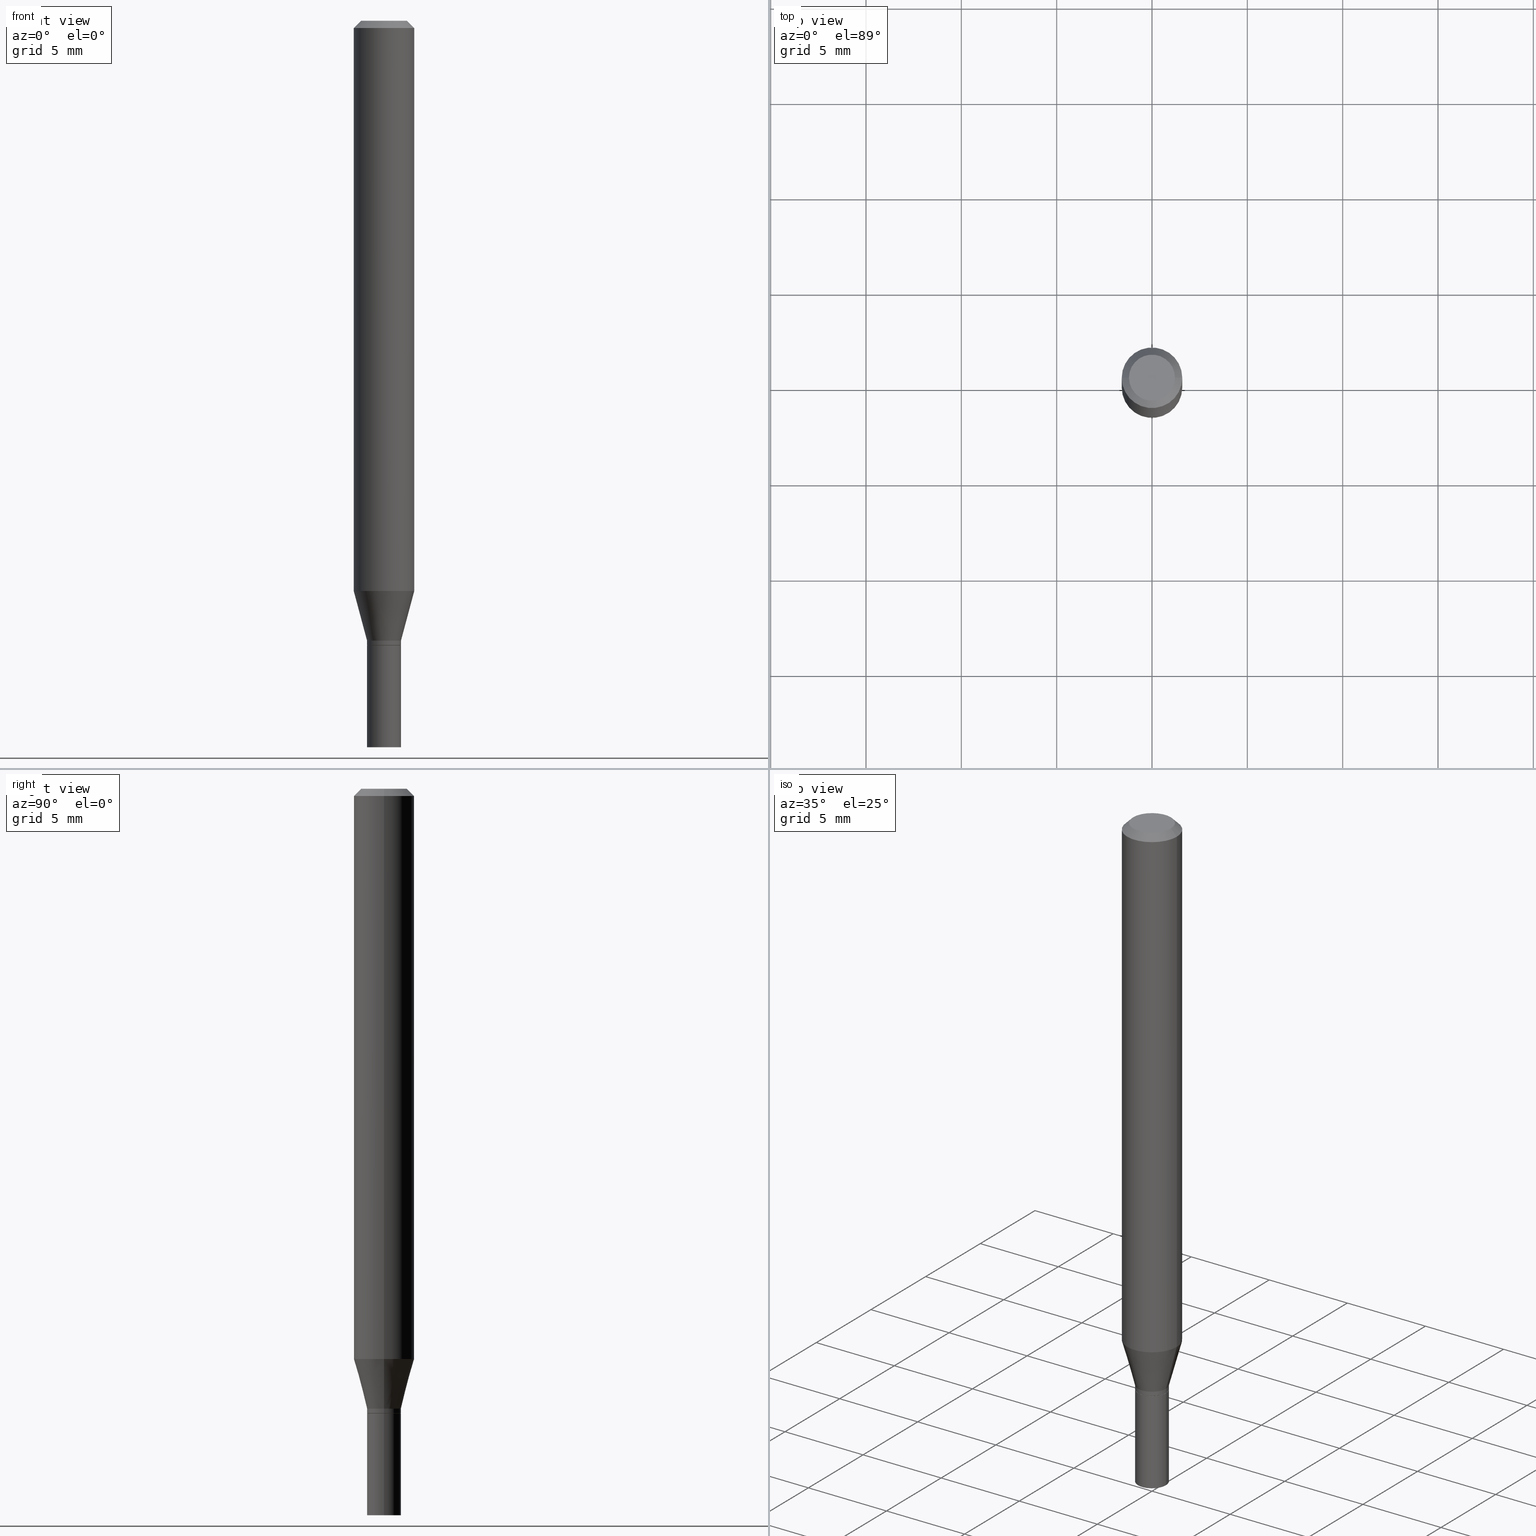
[diagram: canonical four-view strip — front | top / right | iso, engineering-drawing reading convention]
A machine part, canonical four-view strip (front | top / right | iso — engineering-drawing reading convention). The complete STEP part file that produces these views, byte-faithful:
ISO-10303-21;
HEADER;
FILE_DESCRIPTION (( 'STEP AP203' ),
    '1' );
FILE_NAME ('02458.STEP',
    '2024-03-18T20:43:03',
    ( '' ),
    ( '' ),
    'SwSTEP 2.0',
    'SolidWorks 2023',
    '' );
FILE_SCHEMA (( 'CONFIG_CONTROL_DESIGN' ));
ENDSEC;

DATA;
#1 = DIRECTION ( 'NONE',  ( 1.000000000000000000, -6.982962677686276966E-15, 0.000000000000000000 ) ) ;
#2 = DIRECTION ( 'NONE',  ( -2.445468806185136597E-29, 3.491481338843145583E-15, 1.000000000000000000 ) ) ;
#3 = EDGE_CURVE ( 'NONE', #17, #269, #265, .T. ) ;
#4 = CARTESIAN_POINT ( 'NONE',  ( -0.03499999999999992700, -4.220406156203192133E-15, -1.280000000000000027 ) ) ;
#5 = CARTESIAN_POINT ( 'NONE',  ( 0.03500000000000000333, -4.748414620826678245E-15, -1.290000000000000258 ) ) ;
#6 = APPROVAL ( #275, 'UNSPECIFIED' ) ;
#7 = ADVANCED_FACE ( 'NONE', ( #310 ), #237, .T. ) ;
#8 = PLANE ( 'NONE',  #216 ) ;
#9 = DIRECTION ( 'NONE',  ( -2.445468806185136597E-29, 3.491481338843145583E-15, 1.000000000000000000 ) ) ;
#10 = AXIS2_PLACEMENT_3D ( 'NONE', #439, #114, #395 ) ;
#11 = AXIS2_PLACEMENT_3D ( 'NONE', #428, #254, #82 ) ;
#12 = ORIENTED_EDGE ( 'NONE', *, *, #188, .T. ) ;
#13 = VERTEX_POINT ( 'NONE', #201 ) ;
#14 = FACE_OUTER_BOUND ( 'NONE', #160, .T. ) ;
#15 = EDGE_LOOP ( 'NONE', ( #268, #364, #332, #270 ) ) ;
#16 = CARTESIAN_POINT ( 'NONE',  ( 3.154654759978826367E-29, -4.504010927107658279E-15, -1.290000000000000258 ) ) ;
#17 = VERTEX_POINT ( 'NONE', #106 ) ;
#18 = AXIS2_PLACEMENT_3D ( 'NONE', #389, #325, #353 ) ;
#19 = APPLICATION_PROTOCOL_DEFINITION ( 'international standard', 'config_control_design', 1994, #239 ) ;
#20 = ORIENTED_EDGE ( 'NONE', *, *, #405, .F. ) ;
#21 = CALENDAR_DATE ( 2024, 18, 3 ) ;
#22 = DIRECTION ( 'NONE',  ( 1.000000000000000000, -6.982962677686264344E-15, 0.000000000000000000 ) ) ;
#23 = DIRECTION ( 'NONE',  ( -0.7071067811865656694, 7.493145998870420424E-15, 0.7071067811865294761 ) ) ;
#24 = AXIS2_PLACEMENT_3D ( 'NONE', #110, #355, #37 ) ;
#25 = PERSON_AND_ORGANIZATION_ROLE ( 'creator' ) ;
#26 = CARTESIAN_POINT ( 'NONE',  ( 0.06250000000000000000, -4.547195672942983858E-15, -1.177368602791855512 ) ) ;
#27 = CARTESIAN_POINT ( 'NONE',  ( -0.03500000000000000333, -4.621926510170152942E-15, -1.290000000000000258 ) ) ;
#28 = EDGE_CURVE ( 'NONE', #276, #29, #384, .T. ) ;
#29 = VERTEX_POINT ( 'NONE', #281 ) ;
#30 = CARTESIAN_POINT ( 'NONE',  ( 0.03499999999999992700, -4.713499807438245807E-15, -1.280000000000000027 ) ) ;
#31 = CARTESIAN_POINT ( 'NONE',  ( -0.03450000000000000289, -4.258873683270423891E-15, -1.290000000000000258 ) ) ;
#32 = DIRECTION ( 'NONE',  ( -2.445468806185136597E-29, 3.491481338843145583E-15, 1.000000000000000000 ) ) ;
#33 = CC_DESIGN_PERSON_AND_ORGANIZATION_ASSIGNMENT ( #137, #420, ( #251 ) ) ;
#34 = DIRECTION ( 'NONE',  ( -1.000000000000000000, 6.982962677686266711E-15, 0.000000000000000000 ) ) ;
#35 = FACE_OUTER_BOUND ( 'NONE', #193, .T. ) ;
#36 = FACE_OUTER_BOUND ( 'NONE', #337, .T. ) ;
#37 = DIRECTION ( 'NONE',  ( 1.000000000000000000, -6.982962677686266711E-15, 0.000000000000000000 ) ) ;
#38 = CIRCLE ( 'NONE', #301, 0.06250000000000000000 ) ;
#39 = DIRECTION ( 'NONE',  ( -2.445468806185136597E-29, 3.491481338843145583E-15, 1.000000000000000000 ) ) ;
#40 = CIRCLE ( 'NONE', #175, 0.03499999999999992700 ) ;
#41 = PLANE ( 'NONE',  #10 ) ;
#42 = LINE ( 'NONE', #330, #372 ) ;
#43 = EDGE_CURVE ( 'NONE', #29, #296, #38, .T. ) ;
#44 = CLOSED_SHELL ( 'NONE', ( #245, #186, #271, #334, #172, #415, #218, #150, #194, #206, #7, #177 ) ) ;
#45 = AXIS2_PLACEMENT_3D ( 'NONE', #219, #39, #361 ) ;
#46 = ORIENTED_EDGE ( 'NONE', *, *, #221, .T. ) ;
#47 = EDGE_LOOP ( 'NONE', ( #262, #454, #229, #55 ) ) ;
#48 = CALENDAR_DATE ( 2024, 18, 3 ) ;
#49 = APPROVAL_ROLE ( '' ) ;
#50 = ORIENTED_EDGE ( 'NONE', *, *, #435, .T. ) ;
#51 = ORIENTED_EDGE ( 'NONE', *, *, #338, .T. ) ;
#52 = MANIFOLD_SOLID_BREP ( 'Body-Move/Copy2[2]', #44 ) ;
#53 = COORDINATED_UNIVERSAL_TIME_OFFSET ( 5, 0, .BEHIND. ) ;
#54 = DIRECTION ( 'NONE',  ( 1.000000000000000000, 0.000000000000000000, 0.000000000000000000 ) ) ;
#55 = ORIENTED_EDGE ( 'NONE', *, *, #460, .F. ) ;
#56 = EDGE_CURVE ( 'NONE', #13, #345, #102, .T. ) ;
#57 = MANIFOLD_SOLID_BREP ( 'Body-Move/Copy2[1]', #215 ) ;
#58 = DIRECTION ( 'NONE',  ( -0.7071067811865416886, 2.468850131082196713E-15, -0.7071067811865531239 ) ) ;
#59 = CARTESIAN_POINT ( 'NONE',  ( 3.154654759978826367E-29, -4.504010927107658279E-15, -1.290000000000000258 ) ) ;
#60 = AXIS2_PLACEMENT_3D ( 'NONE', #322, #462, #62 ) ;
#61 = LOCAL_TIME ( 16, 43, 3.000000000000000000, #226 ) ;
#62 = DIRECTION ( 'NONE',  ( 1.000000000000000000, -6.982962677686270655E-15, 0.000000000000000000 ) ) ;
#63 = FACE_OUTER_BOUND ( 'NONE', #244, .T. ) ;
#64 = DIRECTION ( 'NONE',  ( -1.000000000000000000, 6.982962677686266711E-15, 0.000000000000000000 ) ) ;
#65 = DIRECTION ( 'NONE',  ( -2.445468806185136597E-29, 3.491481338843145583E-15, 1.000000000000000000 ) ) ;
#66 = DIRECTION ( 'NONE',  ( 0.7071067811865656694, -2.468850131082446387E-15, 0.7071067811865294761 ) ) ;
#67 = DIRECTION ( 'NONE',  ( 1.000000000000000000, -6.982962677686276966E-15, 0.000000000000000000 ) ) ;
#68 = DIRECTION ( 'NONE',  ( -2.445468806185136597E-29, 3.491481338843145583E-15, 1.000000000000000000 ) ) ;
#69 = CC_DESIGN_DATE_AND_TIME_ASSIGNMENT ( #320, #461, ( #251 ) ) ;
#70 = PRODUCT ( '02458', '02458', '', ( #95 ) ) ;
#71 = CARTESIAN_POINT ( 'NONE',  ( 3.130200071916974821E-29, -4.469096113719226630E-15, -1.280000000000000027 ) ) ;
#72 = AXIS2_PLACEMENT_3D ( 'NONE', #197, #318, #235 ) ;
#73 = DIRECTION ( 'NONE',  ( -2.445468806185136597E-29, 3.491481338843145583E-15, 1.000000000000000000 ) ) ;
#74 = CC_DESIGN_APPROVAL ( #6, ( #94 ) ) ;
#75 = DIRECTION ( 'NONE',  ( 1.000000000000000000, -6.982962677686266711E-15, 4.876176775795935793E-29 ) ) ;
#76 = LINE ( 'NONE', #394, #80 ) ;
#77 = EDGE_CURVE ( 'NONE', #269, #300, #381, .T. ) ;
#78 = VERTEX_POINT ( 'NONE', #347 ) ;
#79 = FACE_OUTER_BOUND ( 'NONE', #162, .T. ) ;
#80 = VECTOR ( 'NONE', #294, 39.37007874015748143 ) ;
#81 = DIRECTION ( 'NONE',  ( 1.000000000000000000, -6.982962677686266711E-15, 4.876176775795935793E-29 ) ) ;
#82 = DIRECTION ( 'NONE',  ( 1.000000000000000000, -6.982962677686261977E-15, 0.000000000000000000 ) ) ;
#83 = CARTESIAN_POINT ( 'NONE',  ( 0.03500000000000000333, -2.444036937190193250E-16, 1.706661871528577808E-30 ) ) ;
#84 = ORIENTED_EDGE ( 'NONE', *, *, #380, .T. ) ;
#85 = AXIS2_PLACEMENT_3D ( 'NONE', #412, #99, #414 ) ;
#86 = ORIENTED_EDGE ( 'NONE', *, *, #290, .F. ) ;
#87 = FACE_OUTER_BOUND ( 'NONE', #118, .T. ) ;
#88 = APPROVAL_ROLE ( '' ) ;
#89 = EDGE_LOOP ( 'NONE', ( #404, #314, #441, #374 ) ) ;
#90 = EDGE_CURVE ( 'NONE', #17, #274, #375, .T. ) ;
#91 = PERSON_AND_ORGANIZATION ( #418, #449 ) ;
#92 = COORDINATED_UNIVERSAL_TIME_OFFSET ( 5, 0, .BEHIND. ) ;
#93 = ORIENTED_EDGE ( 'NONE', *, *, #43, .T. ) ;
#94 = PRODUCT_DEFINITION ( 'UNKNOWN', '', #433, #155 ) ;
#95 = MECHANICAL_CONTEXT ( 'NONE', #351, 'mechanical' ) ;
#96 = EDGE_LOOP ( 'NONE', ( #225, #163, #231, #297 ) ) ;
#97 = AXIS2_PLACEMENT_3D ( 'NONE', #213, #183, #1 ) ;
#98 = ORIENTED_EDGE ( 'NONE', *, *, #453, .T. ) ;
#99 = DIRECTION ( 'NONE',  ( -2.445468806185136597E-29, 3.491481338843145583E-15, 1.000000000000000000 ) ) ;
#100 = DIRECTION ( 'NONE',  ( -2.438088387897960049E-29, 3.491481338843145188E-15, 1.000000000000000000 ) ) ;
#101 = VERTEX_POINT ( 'NONE', #26 ) ;
#102 = CIRCLE ( 'NONE', #357, 0.03499999999999992700 ) ;
#103 = CARTESIAN_POINT ( 'NONE',  ( 3.154654759978826367E-29, -4.504010927107658279E-15, -1.290000000000000258 ) ) ;
#104 = DIRECTION ( 'NONE',  ( 1.000000000000000000, -6.982962677686266711E-15, 4.876176775795935793E-29 ) ) ;
#105 = CARTESIAN_POINT ( 'NONE',  ( 3.130200071916974821E-29, -4.469096113719226630E-15, -1.280000000000000027 ) ) ;
#106 = CARTESIAN_POINT ( 'NONE',  ( -0.03450000000000000289, -4.256224456096313479E-15, -1.290000000000000258 ) ) ;
#107 = DIRECTION ( 'NONE',  ( 0.2588190451025205729, 1.565188264969627490E-15, 0.9659258262890682012 ) ) ;
#108 = DIRECTION ( 'NONE',  ( 1.000000000000000000, -6.982962677686264344E-15, 0.000000000000000000 ) ) ;
#109 = CIRCLE ( 'NONE', #266, 0.03499999999999992700 ) ;
#110 = CARTESIAN_POINT ( 'NONE',  ( 3.668203209277705088E-31, -5.237222008264718399E-17, -0.01499999999999999944 ) ) ;
#111 = FACE_OUTER_BOUND ( 'NONE', #171, .T. ) ;
#112 = CARTESIAN_POINT ( 'NONE',  ( 3.130200071916974821E-29, -4.469096113719226630E-15, -1.280000000000000027 ) ) ;
#113 = CONICAL_SURFACE ( 'NONE', #200, 0.06250000000000000000, 0.7853981633974401744 ) ;
#114 = DIRECTION ( 'NONE',  ( -2.438088387897960049E-29, 3.491481338843145188E-15, 1.000000000000000000 ) ) ;
#115 = AXIS2_PLACEMENT_3D ( 'NONE', #304, #191, #54 ) ;
#116 = EDGE_CURVE ( 'NONE', #101, #276, #190, .T. ) ;
#117 = ORIENTED_EDGE ( 'NONE', *, *, #157, .T. ) ;
#118 = EDGE_LOOP ( 'NONE', ( #436, #182 ) ) ;
#119 = EDGE_CURVE ( 'NONE', #227, #29, #126, .T. ) ;
#120 = VECTOR ( 'NONE', #323, 39.37007874015748854 ) ;
#121 = PRODUCT_RELATED_PRODUCT_CATEGORY ( 'detail', '', ( #70 ) ) ;
#122 = ORIENTED_EDGE ( 'NONE', *, *, #366, .F. ) ;
#123 = ORIENTED_EDGE ( 'NONE', *, *, #56, .T. ) ;
#124 = EDGE_CURVE ( 'NONE', #274, #300, #401, .T. ) ;
#125 = VERTEX_POINT ( 'NONE', #376 ) ;
#126 = LINE ( 'NONE', #174, #442 ) ;
#127 = AXIS2_PLACEMENT_3D ( 'NONE', #344, #385, #463 ) ;
#128 = CIRCLE ( 'NONE', #11, 0.03450000000000000289 ) ;
#129 = CYLINDRICAL_SURFACE ( 'NONE', #400, 0.06250000000000000000 ) ;
#130 = COORDINATED_UNIVERSAL_TIME_OFFSET ( 5, 0, .BEHIND. ) ;
#131 = CARTESIAN_POINT ( 'NONE',  ( -0.06250000000000000000, 4.440892098500626162E-16, -3.074334431409316114E-30 ) ) ;
#132 = FACE_OUTER_BOUND ( 'NONE', #399, .T. ) ;
#133 = SECURITY_CLASSIFICATION_LEVEL ( 'unclassified' ) ;
#134 = ORIENTED_EDGE ( 'NONE', *, *, #261, .T. ) ;
#135 = CIRCLE ( 'NONE', #432, 0.03500000000000000333 ) ;
#136 = LOCAL_TIME ( 16, 43, 3.000000000000000000, #383 ) ;
#137 = PERSON_AND_ORGANIZATION ( #418, #449 ) ;
#138 = EDGE_LOOP ( 'NONE', ( #165, #370 ) ) ;
#139 = PRODUCT_DEFINITION_SHAPE ( 'NONE', 'NONE',  #94 ) ;
#140 = EDGE_CURVE ( 'NONE', #78, #125, #408, .T. ) ;
#141 = CARTESIAN_POINT ( 'NONE',  ( 0.03499999999999992700, -4.713499807438245807E-15, -1.280000000000000027 ) ) ;
#142 = CARTESIAN_POINT ( 'NONE',  ( 0.03499999999999992700, -4.746668880157255952E-15, -1.289500000000000313 ) ) ;
#143 = AXIS2_PLACEMENT_3D ( 'NONE', #220, #328, #81 ) ;
#144 = CIRCLE ( 'NONE', #317, 0.04749999999999999362 ) ;
#145 = CARTESIAN_POINT ( 'NONE',  ( 3.130200071916974821E-29, -4.469096113719226630E-15, -1.280000000000000027 ) ) ;
#146 = CARTESIAN_POINT ( 'NONE',  ( 3.316907271900976096E-16, 0.04749999999999999362, -4.235459955654642541E-17 ) ) ;
#147 =( CONVERSION_BASED_UNIT ( 'INCH', #390 ) LENGTH_UNIT ( ) NAMED_UNIT ( #249 ) );
#148 = DIRECTION ( 'NONE',  ( -2.445468806185136597E-29, 3.491481338843145583E-15, 1.000000000000000000 ) ) ;
#149 = CYLINDRICAL_SURFACE ( 'NONE', #143, 0.03499999999999992700 ) ;
#150 = ADVANCED_FACE ( 'NONE', ( #132 ), #393, .T. ) ;
#151 = CC_DESIGN_PERSON_AND_ORGANIZATION_ASSIGNMENT ( #205, #457, ( #433 ) ) ;
#152 = DIRECTION ( 'NONE',  ( -2.445468806185136877E-29, 3.491481338843145188E-15, 1.000000000000000000 ) ) ;
#153 = AXIS2_PLACEMENT_3D ( 'NONE', #112, #392, #327 ) ;
#154 = ORIENTED_EDGE ( 'NONE', *, *, #28, .F. ) ;
#155 = DESIGN_CONTEXT ( 'detailed design', #239, 'design' ) ;
#156 = ORIENTED_EDGE ( 'NONE', *, *, #397, .F. ) ;
#157 = EDGE_CURVE ( 'NONE', #300, #274, #109, .T. ) ;
#158 = VERTEX_POINT ( 'NONE', #5 ) ;
#159 = VECTOR ( 'NONE', #66, 39.37007874015748143 ) ;
#160 = EDGE_LOOP ( 'NONE', ( #117, #233, #122, #20 ) ) ;
#161 = PLANE ( 'NONE',  #166 ) ;
#162 = EDGE_LOOP ( 'NONE', ( #368, #305 ) ) ;
#163 = ORIENTED_EDGE ( 'NONE', *, *, #140, .T. ) ;
#164 = APPROVAL_DATE_TIME ( #438, #398 ) ;
#165 = ORIENTED_EDGE ( 'NONE', *, *, #435, .F. ) ;
#166 = AXIS2_PLACEMENT_3D ( 'NONE', #16, #100, #236 ) ;
#167 = CC_DESIGN_APPROVAL ( #398, ( #251 ) ) ;
#168 = DATE_AND_TIME ( #21, #465 ) ;
#169 = DIRECTION ( 'NONE',  ( 1.000000000000000000, -6.982962677686266711E-15, 0.000000000000000000 ) ) ;
#170 = PERSON_AND_ORGANIZATION_ROLE ( 'creator' ) ;
#171 = EDGE_LOOP ( 'NONE', ( #156, #123, #46, #185 ) ) ;
#172 = ADVANCED_FACE ( 'NONE', ( #431 ), #371, .T. ) ;
#173 = FACE_OUTER_BOUND ( 'NONE', #47, .T. ) ;
#174 = CARTESIAN_POINT ( 'NONE',  ( -0.06250000000000000000, 3.840629472727444916E-16, -0.01499999999999999944 ) ) ;
#175 = AXIS2_PLACEMENT_3D ( 'NONE', #145, #32, #208 ) ;
#176 = APPROVAL_PERSON_ORGANIZATION ( #373, #6, #49 ) ;
#177 = ADVANCED_FACE ( 'NONE', ( #179 ), #427, .T. ) ;
#178 = CYLINDRICAL_SURFACE ( 'NONE', #127, 0.03500000000000000333 ) ;
#179 = FACE_OUTER_BOUND ( 'NONE', #307, .T. ) ;
#180 = CIRCLE ( 'NONE', #358, 0.03500000000000000333 ) ;
#181 = CARTESIAN_POINT ( 'NONE',  ( 2.444036937190508794E-16, 0.03499999999999549999, -1.290000000000000258 ) ) ;
#182 = ORIENTED_EDGE ( 'NONE', *, *, #3, .F. ) ;
#183 = DIRECTION ( 'NONE',  ( -2.445468806185136597E-29, 3.491481338843145583E-15, 1.000000000000000000 ) ) ;
#184 = VECTOR ( 'NONE', #107, 39.37007874015748854 ) ;
#185 = ORIENTED_EDGE ( 'NONE', *, *, #291, .F. ) ;
#186 = ADVANCED_FACE ( 'NONE', ( #253 ), #341, .T. ) ;
#187 = ORIENTED_EDGE ( 'NONE', *, *, #338, .F. ) ;
#188 = EDGE_CURVE ( 'NONE', #296, #29, #455, .T. ) ;
#189 = ORIENTED_EDGE ( 'NONE', *, *, #460, .T. ) ;
#190 = CIRCLE ( 'NONE', #85, 0.06250000000000000000 ) ;
#191 = DIRECTION ( 'NONE',  ( 0.000000000000000000, 0.000000000000000000, 1.000000000000000000 ) ) ;
#192 =( GEOMETRIC_REPRESENTATION_CONTEXT ( 3 ) GLOBAL_UNCERTAINTY_ASSIGNED_CONTEXT ( ( #369 ) ) GLOBAL_UNIT_ASSIGNED_CONTEXT ( ( #147, #329, #309 ) ) REPRESENTATION_CONTEXT ( 'NONE', 'WORKASPACE' ) );
#193 = EDGE_LOOP ( 'NONE', ( #406, #134 ) ) ;
#194 = ADVANCED_FACE ( 'NONE', ( #35 ), #466, .F. ) ;
#195 = DATE_AND_TIME ( #306, #282 ) ;
#196 = CARTESIAN_POINT ( 'NONE',  ( 3.154654759978826367E-29, -4.504010927107658279E-15, -1.290000000000000258 ) ) ;
#197 = CARTESIAN_POINT ( 'NONE',  ( 3.153432025575734126E-29, -4.502265186438236775E-15, -1.289500000000000313 ) ) ;
#198 = CC_DESIGN_PERSON_AND_ORGANIZATION_ASSIGNMENT ( #342, #25, ( #94 ) ) ;
#199 = APPROVAL_DATE_TIME ( #195, #6 ) ;
#200 = AXIS2_PLACEMENT_3D ( 'NONE', #319, #283, #34 ) ;
#201 = CARTESIAN_POINT ( 'NONE',  ( -0.03499999999999992700, -3.943538725970360852E-15, -1.280000000000000027 ) ) ;
#202 = CC_DESIGN_APPROVAL ( #411, ( #433 ) ) ;
#203 = CARTESIAN_POINT ( 'NONE',  ( -0.06250000000000000000, -3.666671295737529572E-15, -1.177368602791855512 ) ) ;
#204 = DIRECTION ( 'NONE',  ( -2.445468806185136877E-29, 3.491481338843145188E-15, 1.000000000000000000 ) ) ;
#205 = PERSON_AND_ORGANIZATION ( #418, #449 ) ;
#206 = ADVANCED_FACE ( 'NONE', ( #87 ), #161, .F. ) ;
#207 = ORIENTED_EDGE ( 'NONE', *, *, #291, .T. ) ;
#208 = DIRECTION ( 'NONE',  ( 1.000000000000000000, -6.982962677686264344E-15, 0.000000000000000000 ) ) ;
#209 = CALENDAR_DATE ( 2024, 18, 3 ) ;
#210 = LINE ( 'NONE', #30, #184 ) ;
#211 = VECTOR ( 'NONE', #263, 39.37007874015748143 ) ;
#212 = APPROVAL_PERSON_ORGANIZATION ( #91, #398, #298 ) ;
#213 = CARTESIAN_POINT ( 'NONE',  ( 3.154654759978826367E-29, -4.504010927107658279E-15, -1.290000000000000258 ) ) ;
#214 = DIRECTION ( 'NONE',  ( -1.000000000000000000, 6.982962677686265922E-15, -4.876176775795935793E-29 ) ) ;
#215 = CLOSED_SHELL ( 'NONE', ( #311, #255, #402, #416 ) ) ;
#216 = AXIS2_PLACEMENT_3D ( 'NONE', #181, #356, #257 ) ;
#217 = DIRECTION ( 'NONE',  ( 1.000000000000000000, -6.982962677686276966E-15, 0.000000000000000000 ) ) ;
#218 = ADVANCED_FACE ( 'NONE', ( #63 ), #129, .T. ) ;
#219 = CARTESIAN_POINT ( 'NONE',  ( 0.000000000000000000, 0.000000000000000000, 0.000000000000000000 ) ) ;
#220 = CARTESIAN_POINT ( 'NONE',  ( 0.000000000000000000, 0.000000000000000000, 0.000000000000000000 ) ) ;
#221 = EDGE_CURVE ( 'NONE', #345, #101, #210, .T. ) ;
#222 = CARTESIAN_POINT ( 'NONE',  ( -6.039856226162565090E-45, 8.623313963198306787E-31, 2.469815280770059421E-16 ) ) ;
#223 = ORIENTED_EDGE ( 'NONE', *, *, #119, .F. ) ;
#224 = AXIS2_PLACEMENT_3D ( 'NONE', #277, #379, #64 ) ;
#225 = ORIENTED_EDGE ( 'NONE', *, *, #380, .F. ) ;
#226 = COORDINATED_UNIVERSAL_TIME_OFFSET ( 5, 0, .BEHIND. ) ;
#227 = VERTEX_POINT ( 'NONE', #247 ) ;
#228 = SHAPE_DEFINITION_REPRESENTATION ( #139, #234 ) ;
#229 = ORIENTED_EDGE ( 'NONE', *, *, #188, .F. ) ;
#230 = EDGE_CURVE ( 'NONE', #125, #158, #430, .T. ) ;
#231 = ORIENTED_EDGE ( 'NONE', *, *, #230, .T. ) ;
#232 = PERSON_AND_ORGANIZATION ( #418, #449 ) ;
#233 = ORIENTED_EDGE ( 'NONE', *, *, #350, .T. ) ;
#234 = ADVANCED_BREP_SHAPE_REPRESENTATION ( '02458', ( #57, #52, #115 ), #192 ) ;
#235 = DIRECTION ( 'NONE',  ( 1.000000000000000000, -6.982962677686264344E-15, 0.000000000000000000 ) ) ;
#236 = DIRECTION ( 'NONE',  ( 1.000000000000000000, -6.982962677686265922E-15, 4.876176775795935793E-29 ) ) ;
#237 = CONICAL_SURFACE ( 'NONE', #316, 0.03450000000000000289, 0.7853981633974739252 ) ;
#238 = AXIS2_PLACEMENT_3D ( 'NONE', #248, #387, #75 ) ;
#239 = APPLICATION_CONTEXT ( 'configuration controlled 3d designs of mechanical parts and assemblies' ) ;
#240 = CARTESIAN_POINT ( 'NONE',  ( 3.668203209277705088E-31, -5.237222008264718399E-17, -0.01499999999999999944 ) ) ;
#241 = CARTESIAN_POINT ( 'NONE',  ( 0.000000000000000000, 0.000000000000000000, 0.000000000000000000 ) ) ;
#242 = ORIENTED_EDGE ( 'NONE', *, *, #350, .F. ) ;
#243 = CYLINDRICAL_SURFACE ( 'NONE', #377, 0.06250000000000000000 ) ;
#244 = EDGE_LOOP ( 'NONE', ( #154, #207, #189, #264 ) ) ;
#245 = ADVANCED_FACE ( 'NONE', ( #14 ), #149, .T. ) ;
#246 = LINE ( 'NONE', #4, #250 ) ;
#247 = CARTESIAN_POINT ( 'NONE',  ( -0.04749999999999999362, 3.578768372314215436E-16, 2.469815280770035755E-16 ) ) ;
#248 = CARTESIAN_POINT ( 'NONE',  ( 0.000000000000000000, 0.000000000000000000, 0.000000000000000000 ) ) ;
#249 = DIMENSIONAL_EXPONENTS ( 1.000000000000000000, 0.000000000000000000, 0.000000000000000000, 0.000000000000000000, 0.000000000000000000, 0.000000000000000000, 0.000000000000000000 ) ;
#250 = VECTOR ( 'NONE', #260, 39.37007874015748854 ) ;
#251 = SECURITY_CLASSIFICATION ( '', '', #133 ) ;
#252 = CARTESIAN_POINT ( 'NONE',  ( -6.039856226162565090E-45, 8.623313963198306787E-31, 2.469815280770059421E-16 ) ) ;
#253 = FACE_OUTER_BOUND ( 'NONE', #396, .T. ) ;
#254 = DIRECTION ( 'NONE',  ( -2.445468806185136597E-29, 3.491481338843145583E-15, 1.000000000000000000 ) ) ;
#255 = ADVANCED_FACE ( 'NONE', ( #360 ), #41, .F. ) ;
#256 = DIRECTION ( 'NONE',  ( 1.000000000000000000, -6.982962677686264344E-15, 0.000000000000000000 ) ) ;
#257 = DIRECTION ( 'NONE',  ( -1.000000000000000000, 6.982962677686265922E-15, -4.876176775795935793E-29 ) ) ;
#258 = CIRCLE ( 'NONE', #448, 0.04749999999999999362 ) ;
#259 = CC_DESIGN_PERSON_AND_ORGANIZATION_ASSIGNMENT ( #232, #445, ( #70 ) ) ;
#260 = DIRECTION ( 'NONE',  ( -0.2588190451025205729, 5.211531920934544731E-15, 0.9659258262890682012 ) ) ;
#261 = EDGE_CURVE ( 'NONE', #303, #227, #144, .T. ) ;
#262 = ORIENTED_EDGE ( 'NONE', *, *, #116, .T. ) ;
#263 = DIRECTION ( 'NONE',  ( -2.445468806185136877E-29, 3.491481338843145188E-15, 1.000000000000000000 ) ) ;
#264 = ORIENTED_EDGE ( 'NONE', *, *, #43, .F. ) ;
#265 = CIRCLE ( 'NONE', #279, 0.03450000000000000289 ) ;
#266 = AXIS2_PLACEMENT_3D ( 'NONE', #424, #2, #256 ) ;
#267 = PERSON_AND_ORGANIZATION ( #418, #449 ) ;
#268 = ORIENTED_EDGE ( 'NONE', *, *, #366, .T. ) ;
#269 = VERTEX_POINT ( 'NONE', #346 ) ;
#270 = ORIENTED_EDGE ( 'NONE', *, *, #221, .F. ) ;
#271 = ADVANCED_FACE ( 'NONE', ( #352 ), #113, .T. ) ;
#272 = CIRCLE ( 'NONE', #60, 0.06250000000000000000 ) ;
#273 = APPLICATION_PROTOCOL_DEFINITION ( 'international standard', 'config_control_design', 1994, #351 ) ;
#274 = VERTEX_POINT ( 'NONE', #286 ) ;
#275 = APPROVAL_STATUS ( 'not_yet_approved' ) ;
#276 = VERTEX_POINT ( 'NONE', #203 ) ;
#277 = CARTESIAN_POINT ( 'NONE',  ( 3.668203209277705088E-31, -5.237222008264718399E-17, -0.01499999999999999944 ) ) ;
#278 = CARTESIAN_POINT ( 'NONE',  ( 0.06250000000000000000, -4.811533449433679005E-16, -0.01499999999999999944 ) ) ;
#279 = AXIS2_PLACEMENT_3D ( 'NONE', #196, #284, #339 ) ;
#280 = AXIS2_PLACEMENT_3D ( 'NONE', #146, #289, #214 ) ;
#281 = CARTESIAN_POINT ( 'NONE',  ( -0.06250000000000000000, -1.637477152985056820E-15, -0.01499999999999999944 ) ) ;
#282 = LOCAL_TIME ( 16, 43, 3.000000000000000000, #130 ) ;
#283 = DIRECTION ( 'NONE',  ( 2.445468806185136597E-29, -3.491481338843145583E-15, -1.000000000000000000 ) ) ;
#284 = DIRECTION ( 'NONE',  ( -2.445468806185136597E-29, 3.491481338843145583E-15, 1.000000000000000000 ) ) ;
#285 = CARTESIAN_POINT ( 'NONE',  ( -0.03500000000000000333, 2.486899575160350887E-16, -1.721627281589217108E-30 ) ) ;
#286 = CARTESIAN_POINT ( 'NONE',  ( -0.03499999999999992700, -4.253575228922203067E-15, -1.289500000000000313 ) ) ;
#287 = LOCAL_TIME ( 16, 43, 3.000000000000000000, #53 ) ;
#288 = CYLINDRICAL_SURFACE ( 'NONE', #45, 0.03500000000000000333 ) ;
#289 = DIRECTION ( 'NONE',  ( 2.438088387897960049E-29, -3.491481338843145188E-15, -1.000000000000000000 ) ) ;
#290 = EDGE_CURVE ( 'NONE', #227, #303, #258, .T. ) ;
#291 = EDGE_CURVE ( 'NONE', #276, #101, #272, .T. ) ;
#292 = CARTESIAN_POINT ( 'NONE',  ( 3.668203209277704895E-29, -5.237222008264718177E-15, -1.500000000000000222 ) ) ;
#293 = CIRCLE ( 'NONE', #97, 0.03500000000000000333 ) ;
#294 = DIRECTION ( 'NONE',  ( -2.445468806185136877E-29, 3.491481338843145188E-15, 1.000000000000000000 ) ) ;
#295 = DIRECTION ( 'NONE',  ( 1.000000000000000000, -6.982962677686267499E-15, 4.852736867747366768E-29 ) ) ;
#296 = VERTEX_POINT ( 'NONE', #313 ) ;
#297 = ORIENTED_EDGE ( 'NONE', *, *, #440, .F. ) ;
#298 = APPROVAL_ROLE ( '' ) ;
#299 = CC_DESIGN_PERSON_AND_ORGANIZATION_ASSIGNMENT ( #413, #170, ( #433 ) ) ;
#300 = VERTEX_POINT ( 'NONE', #142 ) ;
#301 = AXIS2_PLACEMENT_3D ( 'NONE', #240, #419, #169 ) ;
#302 = VECTOR ( 'NONE', #422, 39.37007874015748143 ) ;
#303 = VERTEX_POINT ( 'NONE', #425 ) ;
#304 = CARTESIAN_POINT ( 'NONE',  ( 0.000000000000000000, 0.000000000000000000, 0.000000000000000000 ) ) ;
#305 = ORIENTED_EDGE ( 'NONE', *, *, #440, .T. ) ;
#306 = CALENDAR_DATE ( 2024, 18, 3 ) ;
#307 = EDGE_LOOP ( 'NONE', ( #242, #391, #362, #409 ) ) ;
#308 = AXIS2_PLACEMENT_3D ( 'NONE', #340, #343, #312 ) ;
#309 =( NAMED_UNIT ( * ) SI_UNIT ( $, .STERADIAN. ) SOLID_ANGLE_UNIT ( ) );
#310 = FACE_OUTER_BOUND ( 'NONE', #89, .T. ) ;
#311 = ADVANCED_FACE ( 'NONE', ( #36 ), #178, .T. ) ;
#312 = DIRECTION ( 'NONE',  ( 1.000000000000000000, -6.982962677686276966E-15, 0.000000000000000000 ) ) ;
#313 = CARTESIAN_POINT ( 'NONE',  ( 0.06250000000000000000, -4.888073874380388472E-16, -0.01499999999999999944 ) ) ;
#314 = ORIENTED_EDGE ( 'NONE', *, *, #3, .T. ) ;
#315 = LINE ( 'NONE', #278, #120 ) ;
#316 = AXIS2_PLACEMENT_3D ( 'NONE', #59, #452, #421 ) ;
#317 = AXIS2_PLACEMENT_3D ( 'NONE', #222, #9, #295 ) ;
#318 = DIRECTION ( 'NONE',  ( -2.445468806185136597E-29, 3.491481338843145583E-15, 1.000000000000000000 ) ) ;
#319 = CARTESIAN_POINT ( 'NONE',  ( 3.668203209277705088E-31, -5.237222008264718399E-17, -0.01499999999999999944 ) ) ;
#320 = DATE_AND_TIME ( #209, #136 ) ;
#321 = CC_DESIGN_DATE_AND_TIME_ASSIGNMENT ( #168, #451, ( #94 ) ) ;
#322 = CARTESIAN_POINT ( 'NONE',  ( 2.879218191509261497E-29, -4.110760505587591399E-15, -1.177368602791855512 ) ) ;
#323 = DIRECTION ( 'NONE',  ( 0.7071067811865416886, -7.319954787623233957E-15, -0.7071067811865531239 ) ) ;
#324 = VECTOR ( 'NONE', #204, 39.37007874015748143 ) ;
#325 = DIRECTION ( 'NONE',  ( -2.445468806185136597E-29, 3.491481338843145583E-15, 1.000000000000000000 ) ) ;
#326 = CC_DESIGN_SECURITY_CLASSIFICATION ( #251, ( #433 ) ) ;
#327 = DIRECTION ( 'NONE',  ( 1.000000000000000000, -6.982962677686264344E-15, 0.000000000000000000 ) ) ;
#328 = DIRECTION ( 'NONE',  ( -2.445468806185136597E-29, 3.491481338843145583E-15, 1.000000000000000000 ) ) ;
#329 =( NAMED_UNIT ( * ) PLANE_ANGLE_UNIT ( ) SI_UNIT ( $, .RADIAN. ) );
#330 = CARTESIAN_POINT ( 'NONE',  ( 0.06250000000000000000, -4.364351673553916694E-16, 3.047610484872459871E-30 ) ) ;
#331 = VERTEX_POINT ( 'NONE', #27 ) ;
#332 = ORIENTED_EDGE ( 'NONE', *, *, #116, .F. ) ;
#333 = ORIENTED_EDGE ( 'NONE', *, *, #230, .F. ) ;
#334 = ADVANCED_FACE ( 'NONE', ( #173 ), #243, .T. ) ;
#335 = ORIENTED_EDGE ( 'NONE', *, *, #77, .F. ) ;
#336 = CONICAL_SURFACE ( 'NONE', #153, 0.03499999999999992700, 0.2617993877991492968 ) ;
#337 = EDGE_LOOP ( 'NONE', ( #50, #84, #437, #333 ) ) ;
#338 = EDGE_CURVE ( 'NONE', #303, #296, #315, .T. ) ;
#339 = DIRECTION ( 'NONE',  ( 1.000000000000000000, -6.982962677686261977E-15, 0.000000000000000000 ) ) ;
#340 = CARTESIAN_POINT ( 'NONE',  ( 3.668203209277704895E-29, -5.237222008264718177E-15, -1.500000000000000222 ) ) ;
#341 = CONICAL_SURFACE ( 'NONE', #18, 0.03450000000000000289, 0.7853981633974739252 ) ;
#342 = PERSON_AND_ORGANIZATION ( #418, #449 ) ;
#343 = DIRECTION ( 'NONE',  ( -2.445468806185136597E-29, 3.491481338843145583E-15, 1.000000000000000000 ) ) ;
#344 = CARTESIAN_POINT ( 'NONE',  ( 0.000000000000000000, 0.000000000000000000, 0.000000000000000000 ) ) ;
#345 = VERTEX_POINT ( 'NONE', #141 ) ;
#346 = CARTESIAN_POINT ( 'NONE',  ( 0.03450000000000000289, -4.744923139487834449E-15, -1.290000000000000258 ) ) ;
#347 = CARTESIAN_POINT ( 'NONE',  ( -0.03500000000000000333, -4.621926510170152942E-15, -1.500000000000000222 ) ) ;
#348 = LINE ( 'NONE', #285, #302 ) ;
#349 = DIRECTION ( 'NONE',  ( -2.445468806185136597E-29, 3.491481338843145583E-15, 1.000000000000000000 ) ) ;
#350 = EDGE_CURVE ( 'NONE', #274, #13, #456, .T. ) ;
#351 = APPLICATION_CONTEXT ( 'configuration controlled 3d designs of mechanical parts and assemblies' ) ;
#352 = FACE_OUTER_BOUND ( 'NONE', #458, .T. ) ;
#353 = DIRECTION ( 'NONE',  ( 1.000000000000000000, -6.982962677686261977E-15, 0.000000000000000000 ) ) ;
#354 = DIRECTION ( 'NONE',  ( -2.445468806185136597E-29, 3.491481338843145583E-15, 1.000000000000000000 ) ) ;
#355 = DIRECTION ( 'NONE',  ( -2.445468806185136597E-29, 3.491481338843145583E-15, 1.000000000000000000 ) ) ;
#356 = DIRECTION ( 'NONE',  ( 2.438088387897960049E-29, -3.491481338843145188E-15, -1.000000000000000000 ) ) ;
#357 = AXIS2_PLACEMENT_3D ( 'NONE', #105, #450, #22 ) ;
#358 = AXIS2_PLACEMENT_3D ( 'NONE', #103, #73, #67 ) ;
#359 = ORIENTED_EDGE ( 'NONE', *, *, #157, .F. ) ;
#360 = FACE_OUTER_BOUND ( 'NONE', #138, .T. ) ;
#361 = DIRECTION ( 'NONE',  ( 1.000000000000000000, -6.982962677686265922E-15, 4.876176775795936353E-29 ) ) ;
#362 = ORIENTED_EDGE ( 'NONE', *, *, #405, .T. ) ;
#363 = AXIS2_PLACEMENT_3D ( 'NONE', #71, #349, #108 ) ;
#364 = ORIENTED_EDGE ( 'NONE', *, *, #397, .T. ) ;
#365 = EDGE_CURVE ( 'NONE', #158, #331, #180, .T. ) ;
#366 = EDGE_CURVE ( 'NONE', #345, #13, #40, .T. ) ;
#367 = CALENDAR_DATE ( 2024, 18, 3 ) ;
#368 = ORIENTED_EDGE ( 'NONE', *, *, #365, .T. ) ;
#369 = UNCERTAINTY_MEASURE_WITH_UNIT (LENGTH_MEASURE( 1.000000000000000082E-05 ), #147, 'distance_accuracy_value', 'NONE');
#370 = ORIENTED_EDGE ( 'NONE', *, *, #140, .F. ) ;
#371 = CONICAL_SURFACE ( 'NONE', #363, 0.03499999999999992700, 0.2617993877991492968 ) ;
#372 = VECTOR ( 'NONE', #152, 39.37007874015748143 ) ;
#373 = PERSON_AND_ORGANIZATION ( #418, #449 ) ;
#374 = ORIENTED_EDGE ( 'NONE', *, *, #124, .F. ) ;
#375 = LINE ( 'NONE', #31, #464 ) ;
#376 = CARTESIAN_POINT ( 'NONE',  ( 0.03500000000000000333, -5.481625701983738143E-15, -1.500000000000000222 ) ) ;
#377 = AXIS2_PLACEMENT_3D ( 'NONE', #241, #65, #459 ) ;
#378 = DIRECTION ( 'NONE',  ( 1.000000000000000000, -6.982962677686267499E-15, 4.852736867747366768E-29 ) ) ;
#379 = DIRECTION ( 'NONE',  ( 2.445468806185136597E-29, -3.491481338843145583E-15, -1.000000000000000000 ) ) ;
#380 = EDGE_CURVE ( 'NONE', #78, #331, #348, .T. ) ;
#381 = LINE ( 'NONE', #447, #159 ) ;
#382 = DIRECTION ( 'NONE',  ( -2.445468806185136877E-29, 3.491481338843145188E-15, 1.000000000000000000 ) ) ;
#383 = COORDINATED_UNIVERSAL_TIME_OFFSET ( 5, 0, .BEHIND. ) ;
#384 = LINE ( 'NONE', #131, #324 ) ;
#385 = DIRECTION ( 'NONE',  ( -2.445468806185136597E-29, 3.491481338843145583E-15, 1.000000000000000000 ) ) ;
#386 = VECTOR ( 'NONE', #382, 39.37007874015748143 ) ;
#387 = DIRECTION ( 'NONE',  ( -2.445468806185136597E-29, 3.491481338843145583E-15, 1.000000000000000000 ) ) ;
#388 = APPROVAL_DATE_TIME ( #426, #411 ) ;
#389 = CARTESIAN_POINT ( 'NONE',  ( 3.154654759978826367E-29, -4.504010927107658279E-15, -1.290000000000000258 ) ) ;
#390 = LENGTH_MEASURE_WITH_UNIT ( LENGTH_MEASURE( 0.02539999999999999897 ), #434 );
#391 = ORIENTED_EDGE ( 'NONE', *, *, #124, .T. ) ;
#392 = DIRECTION ( 'NONE',  ( -2.445468806185136597E-29, 3.491481338843145583E-15, 1.000000000000000000 ) ) ;
#393 = CONICAL_SURFACE ( 'NONE', #224, 0.06250000000000000000, 0.7853981633974401744 ) ;
#394 = CARTESIAN_POINT ( 'NONE',  ( 0.03499999999999992700, -2.444036937190188320E-16, 1.706661871528573954E-30 ) ) ;
#395 = DIRECTION ( 'NONE',  ( 1.000000000000000000, -6.982962677686265922E-15, 4.876176775795935793E-29 ) ) ;
#396 = EDGE_LOOP ( 'NONE', ( #98, #446, #359, #335 ) ) ;
#397 = EDGE_CURVE ( 'NONE', #13, #276, #246, .T. ) ;
#398 = APPROVAL ( #410, 'UNSPECIFIED' ) ;
#399 = EDGE_LOOP ( 'NONE', ( #187, #86, #444, #93 ) ) ;
#400 = AXIS2_PLACEMENT_3D ( 'NONE', #423, #68, #104 ) ;
#401 = CIRCLE ( 'NONE', #72, 0.03499999999999992700 ) ;
#402 = ADVANCED_FACE ( 'NONE', ( #429 ), #288, .T. ) ;
#403 = APPROVAL_STATUS ( 'not_yet_approved' ) ;
#404 = ORIENTED_EDGE ( 'NONE', *, *, #90, .F. ) ;
#405 = EDGE_CURVE ( 'NONE', #300, #345, #76, .T. ) ;
#406 = ORIENTED_EDGE ( 'NONE', *, *, #290, .T. ) ;
#407 = ORIENTED_EDGE ( 'NONE', *, *, #261, .F. ) ;
#408 = CIRCLE ( 'NONE', #308, 0.03500000000000000333 ) ;
#409 = ORIENTED_EDGE ( 'NONE', *, *, #56, .F. ) ;
#410 = APPROVAL_STATUS ( 'not_yet_approved' ) ;
#411 = APPROVAL ( #403, 'UNSPECIFIED' ) ;
#412 = CARTESIAN_POINT ( 'NONE',  ( 2.879218191509261497E-29, -4.110760505587591399E-15, -1.177368602791855512 ) ) ;
#413 = PERSON_AND_ORGANIZATION ( #418, #449 ) ;
#414 = DIRECTION ( 'NONE',  ( 1.000000000000000000, -6.982962677686270655E-15, 0.000000000000000000 ) ) ;
#415 = ADVANCED_FACE ( 'NONE', ( #111 ), #336, .T. ) ;
#416 = ADVANCED_FACE ( 'NONE', ( #79 ), #8, .F. ) ;
#417 = CARTESIAN_POINT ( 'NONE',  ( -0.03499999999999992700, 2.486899575160345464E-16, -1.721627281589213254E-30 ) ) ;
#418 = PERSON ( 'UNSPECIFIED', 'UNSPECIFIED', 'UNSPECIFIED', ('UNSPECIFIED'), ('UNSPECIFIED'), ('UNSPECIFIED') ) ;
#419 = DIRECTION ( 'NONE',  ( -2.445468806185136597E-29, 3.491481338843145583E-15, 1.000000000000000000 ) ) ;
#420 = PERSON_AND_ORGANIZATION_ROLE ( 'classification_officer' ) ;
#421 = DIRECTION ( 'NONE',  ( 1.000000000000000000, -6.982962677686261977E-15, 0.000000000000000000 ) ) ;
#422 = DIRECTION ( 'NONE',  ( -2.445468806185136877E-29, 3.491481338843145188E-15, 1.000000000000000000 ) ) ;
#423 = CARTESIAN_POINT ( 'NONE',  ( 0.000000000000000000, 0.000000000000000000, 0.000000000000000000 ) ) ;
#424 = CARTESIAN_POINT ( 'NONE',  ( 3.153432025575734126E-29, -4.502265186438236775E-15, -1.289500000000000313 ) ) ;
#425 = CARTESIAN_POINT ( 'NONE',  ( 0.04749999999999999362, -4.035134999187574186E-16, 2.469815280770085059E-16 ) ) ;
#426 = DATE_AND_TIME ( #367, #61 ) ;
#427 = CYLINDRICAL_SURFACE ( 'NONE', #238, 0.03499999999999992700 ) ;
#428 = CARTESIAN_POINT ( 'NONE',  ( 3.154654759978826367E-29, -4.504010927107658279E-15, -1.290000000000000258 ) ) ;
#429 = FACE_OUTER_BOUND ( 'NONE', #96, .T. ) ;
#430 = LINE ( 'NONE', #83, #211 ) ;
#431 = FACE_OUTER_BOUND ( 'NONE', #15, .T. ) ;
#432 = AXIS2_PLACEMENT_3D ( 'NONE', #292, #148, #217 ) ;
#433 = PRODUCT_DEFINITION_FORMATION_WITH_SPECIFIED_SOURCE ( 'ANY', '', #70, .NOT_KNOWN. ) ;
#434 =( LENGTH_UNIT ( ) NAMED_UNIT ( * ) SI_UNIT ( $, .METRE. ) );
#435 = EDGE_CURVE ( 'NONE', #125, #78, #135, .T. ) ;
#436 = ORIENTED_EDGE ( 'NONE', *, *, #453, .F. ) ;
#437 = ORIENTED_EDGE ( 'NONE', *, *, #365, .F. ) ;
#438 = DATE_AND_TIME ( #48, #287 ) ;
#439 = CARTESIAN_POINT ( 'NONE',  ( 3.576687321579069994E-29, -5.368277968210015545E-15, -1.500000000000000222 ) ) ;
#440 = EDGE_CURVE ( 'NONE', #331, #158, #293, .T. ) ;
#441 = ORIENTED_EDGE ( 'NONE', *, *, #77, .T. ) ;
#442 = VECTOR ( 'NONE', #58, 39.37007874015748854 ) ;
#443 = APPROVAL_PERSON_ORGANIZATION ( #267, #411, #88 ) ;
#444 = ORIENTED_EDGE ( 'NONE', *, *, #119, .T. ) ;
#445 = PERSON_AND_ORGANIZATION_ROLE ( 'design_owner' ) ;
#446 = ORIENTED_EDGE ( 'NONE', *, *, #90, .T. ) ;
#447 = CARTESIAN_POINT ( 'NONE',  ( 0.03450000000000000289, -4.744923139487834449E-15, -1.290000000000000258 ) ) ;
#448 = AXIS2_PLACEMENT_3D ( 'NONE', #252, #354, #378 ) ;
#449 = ORGANIZATION ( 'UNSPECIFIED', 'UNSPECIFIED', '' ) ;
#450 = DIRECTION ( 'NONE',  ( -2.445468806185136597E-29, 3.491481338843145583E-15, 1.000000000000000000 ) ) ;
#451 = DATE_TIME_ROLE ( 'creation_date' ) ;
#452 = DIRECTION ( 'NONE',  ( -2.445468806185136597E-29, 3.491481338843145583E-15, 1.000000000000000000 ) ) ;
#453 = EDGE_CURVE ( 'NONE', #269, #17, #128, .T. ) ;
#454 = ORIENTED_EDGE ( 'NONE', *, *, #28, .T. ) ;
#455 = CIRCLE ( 'NONE', #24, 0.06250000000000000000 ) ;
#456 = LINE ( 'NONE', #417, #386 ) ;
#457 = PERSON_AND_ORGANIZATION_ROLE ( 'design_supplier' ) ;
#458 = EDGE_LOOP ( 'NONE', ( #407, #51, #12, #223 ) ) ;
#459 = DIRECTION ( 'NONE',  ( 1.000000000000000000, -6.982962677686266711E-15, 4.876176775795935793E-29 ) ) ;
#460 = EDGE_CURVE ( 'NONE', #101, #296, #42, .T. ) ;
#461 = DATE_TIME_ROLE ( 'classification_date' ) ;
#462 = DIRECTION ( 'NONE',  ( -2.445468806185136597E-29, 3.491481338843145583E-15, 1.000000000000000000 ) ) ;
#463 = DIRECTION ( 'NONE',  ( 1.000000000000000000, -6.982962677686265922E-15, 4.876176775795936353E-29 ) ) ;
#464 = VECTOR ( 'NONE', #23, 39.37007874015748143 ) ;
#465 = LOCAL_TIME ( 16, 43, 3.000000000000000000, #92 ) ;
#466 = PLANE ( 'NONE',  #280 ) ;
ENDSEC;
END-ISO-10303-21;
